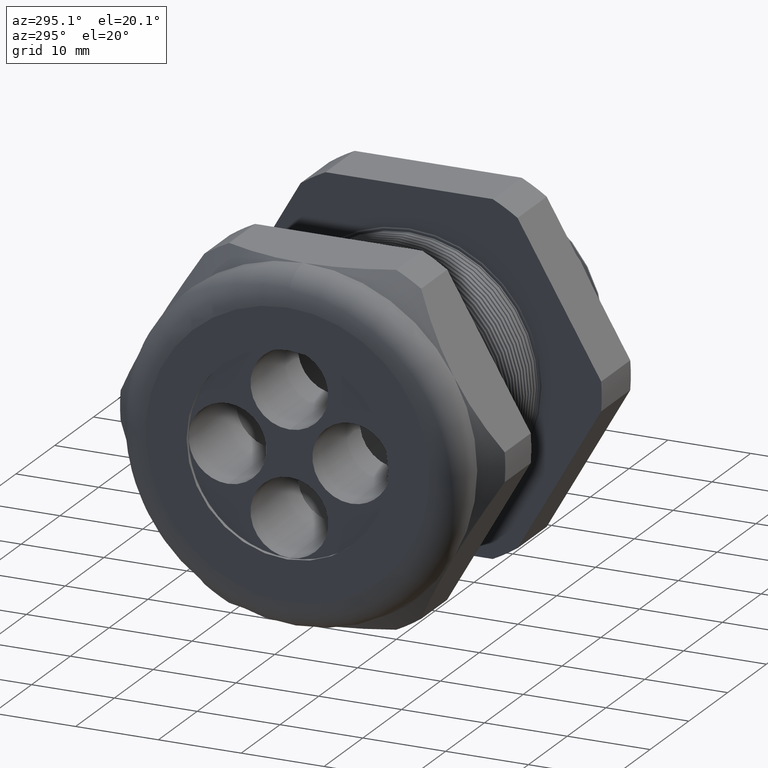
[diagram: clean part render]
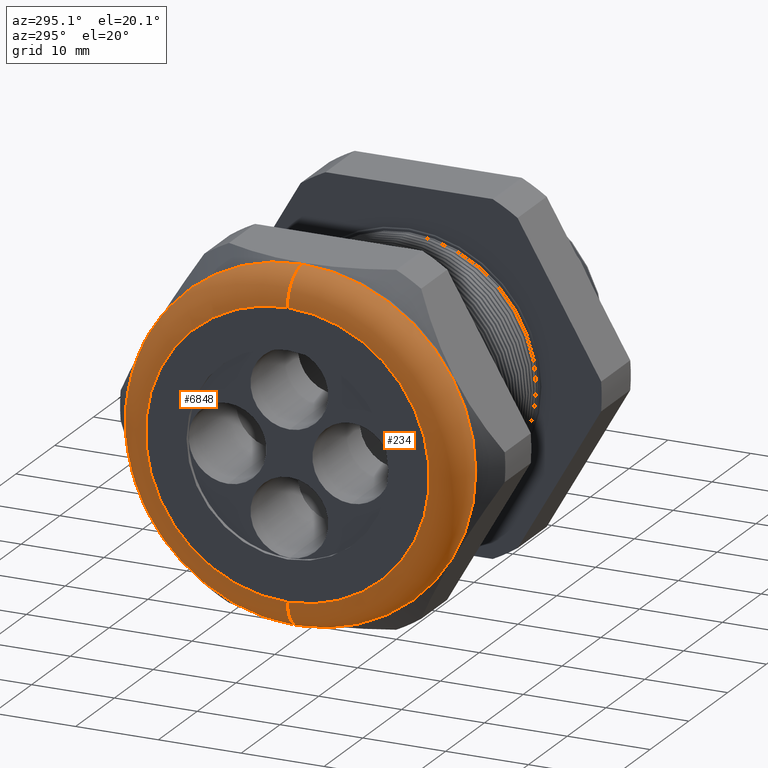
[diagram: same view with one multi-face feature highlighted, each face labeled with its STEP entity id]
A machine part, auxiliary view. The highlighted faces form ONE feature: a constant-radius fillet chain: 2 tangent blend faces with common blend radius 3.81 mm. The faces share edges in the B-rep.
Their STEP definitions:
[1] entity #6848 (Torus):
#111 = ORIENTED_EDGE ( 'NONE', *, *, #6888, .T. ) ;
#4904 = CARTESIAN_POINT ( 'NONE',  ( -1.689999999999999500, 1.010333609296566100E-016, 0.8249999999999998400 ) ) ;
#4905 = DIRECTION ( 'NONE',  ( 0.0000000000000000000, 0.0000000000000000000, 1.000000000000000000 ) ) ;
#4906 = DIRECTION ( 'NONE',  ( 1.000000000000000000, 0.0000000000000000000, 0.0000000000000000000 ) ) ;
#4907 = CARTESIAN_POINT ( 'NONE',  ( -1.689999999999999500, 0.0000000000000000000, 0.0000000000000000000 ) ) ;
#4908 = AXIS2_PLACEMENT_3D ( 'NONE', #4907, #4906, #4905 ) ;
#4909 = CIRCLE ( 'NONE', #4908, 0.8249999999999998400 ) ;
#4910 = CARTESIAN_POINT ( 'NONE',  ( -1.689999999999999500, 0.0000000000000000000, -0.8249999999999998400 ) ) ;
#4936 = DIRECTION ( 'NONE',  ( 0.0000000000000000000, 0.0000000000000000000, 1.000000000000000000 ) ) ;
#4937 = DIRECTION ( 'NONE',  ( -1.000000000000000000, 0.0000000000000000000, 0.0000000000000000000 ) ) ;
#4938 = CARTESIAN_POINT ( 'NONE',  ( -1.689999999999999500, 0.0000000000000000000, 0.0000000000000000000 ) ) ;
#4939 = AXIS2_PLACEMENT_3D ( 'NONE', #4938, #4937, #4936 ) ;
#4940 = TOROIDAL_SURFACE ( 'NONE', #4939, 0.6749999999999997100, 0.1499999999999999900 ) ;
#4941 = FACE_OUTER_BOUND ( 'NONE', #6827, .T. ) ;
#4996 = DIRECTION ( 'NONE',  ( 0.0000000000000000000, 0.0000000000000000000, -1.000000000000000000 ) ) ;
#4997 = DIRECTION ( 'NONE',  ( 0.0000000000000000000, -1.000000000000000000, 0.0000000000000000000 ) ) ;
#4998 = CARTESIAN_POINT ( 'NONE',  ( -1.689999999999999500, 0.0000000000000000000, 0.6749999999999997100 ) ) ;
#4999 = AXIS2_PLACEMENT_3D ( 'NONE', #4998, #4997, #4996 ) ;
#5000 = CIRCLE ( 'NONE', #4999, 0.1499999999999999700 ) ;
#5030 = DIRECTION ( 'NONE',  ( 0.0000000000000000000, 0.0000000000000000000, 1.000000000000000000 ) ) ;
#5031 = DIRECTION ( 'NONE',  ( -1.000000000000000000, 0.0000000000000000000, 0.0000000000000000000 ) ) ;
#5032 = CARTESIAN_POINT ( 'NONE',  ( -1.839999999999999400, 0.0000000000000000000, 0.0000000000000000000 ) ) ;
#5033 = AXIS2_PLACEMENT_3D ( 'NONE', #5032, #5031, #5030 ) ;
#5034 = CIRCLE ( 'NONE', #5033, 0.6749999999999997100 ) ;
#5036 = CARTESIAN_POINT ( 'NONE',  ( -1.839999999999999400, 0.0000000000000000000, 0.6749999999999997100 ) ) ;
#5042 = DIRECTION ( 'NONE',  ( 0.0000000000000000000, -1.224646799147353200E-016, 1.000000000000000000 ) ) ;
#5043 = DIRECTION ( 'NONE',  ( 0.0000000000000000000, 1.000000000000000000, 1.224646799147353200E-016 ) ) ;
#5044 = CARTESIAN_POINT ( 'NONE',  ( -1.689999999999999500, 8.266365894244631900E-017, -0.6749999999999997100 ) ) ;
#5045 = AXIS2_PLACEMENT_3D ( 'NONE', #5044, #5043, #5042 ) ;
#5046 = CIRCLE ( 'NONE', #5045, 0.1499999999999999700 ) ;
#5089 = CARTESIAN_POINT ( 'NONE',  ( -1.839999999999999400, 9.184850993605146000E-017, -0.6749999999999997100 ) ) ;
#6827 = EDGE_LOOP ( 'NONE', ( #6833, #111, #6882, #6885 ) ) ;
#6828 = VERTEX_POINT ( 'NONE', #4910 ) ;
#6831 = EDGE_CURVE ( 'NONE', #6828, #6834, #4909, .T. ) ;
#6833 = ORIENTED_EDGE ( 'NONE', *, *, #6831, .F. ) ;
#6834 = VERTEX_POINT ( 'NONE', #4904 ) ;
#6848 = ADVANCED_FACE ( 'NONE', ( #4941 ), #4940, .T. ) ;
#6882 = ORIENTED_EDGE ( 'NONE', *, *, #6891, .F. ) ;
#6883 = EDGE_CURVE ( 'NONE', #6834, #6890, #5000, .T. ) ;
#6885 = ORIENTED_EDGE ( 'NONE', *, *, #6883, .F. ) ;
#6888 = EDGE_CURVE ( 'NONE', #6828, #6894, #5046, .T. ) ;
#6890 = VERTEX_POINT ( 'NONE', #5036 ) ;
#6891 = EDGE_CURVE ( 'NONE', #6890, #6894, #5034, .T. ) ;
#6894 = VERTEX_POINT ( 'NONE', #5089 ) ;
[2] entity #234 (Torus):
#128 = EDGE_CURVE ( 'NONE', #6894, #6890, #1544, .T. ) ;
#187 = EDGE_CURVE ( 'NONE', #6834, #6828, #1647, .T. ) ;
#234 = ADVANCED_FACE ( 'NONE', ( #1716 ), #1715, .T. ) ;
#235 = EDGE_LOOP ( 'NONE', ( #236, #237, #238, #239 ) ) ;
#236 = ORIENTED_EDGE ( 'NONE', *, *, #6888, .F. ) ;
#237 = ORIENTED_EDGE ( 'NONE', *, *, #187, .F. ) ;
#238 = ORIENTED_EDGE ( 'NONE', *, *, #6883, .T. ) ;
#239 = ORIENTED_EDGE ( 'NONE', *, *, #128, .F. ) ;
#1544 = CIRCLE ( 'NONE', #1610, 0.6749999999999997100 ) ;
#1607 = DIRECTION ( 'NONE',  ( 0.0000000000000000000, 0.0000000000000000000, 1.000000000000000000 ) ) ;
#1608 = DIRECTION ( 'NONE',  ( -1.000000000000000000, 0.0000000000000000000, 0.0000000000000000000 ) ) ;
#1609 = CARTESIAN_POINT ( 'NONE',  ( -1.839999999999999400, 0.0000000000000000000, 0.0000000000000000000 ) ) ;
#1610 = AXIS2_PLACEMENT_3D ( 'NONE', #1609, #1608, #1607 ) ;
#1643 = DIRECTION ( 'NONE',  ( 0.0000000000000000000, 0.0000000000000000000, 1.000000000000000000 ) ) ;
#1644 = DIRECTION ( 'NONE',  ( 1.000000000000000000, 0.0000000000000000000, 0.0000000000000000000 ) ) ;
#1645 = CARTESIAN_POINT ( 'NONE',  ( -1.689999999999999500, 0.0000000000000000000, 0.0000000000000000000 ) ) ;
#1646 = AXIS2_PLACEMENT_3D ( 'NONE', #1645, #1644, #1643 ) ;
#1647 = CIRCLE ( 'NONE', #1646, 0.8249999999999998400 ) ;
#1712 = DIRECTION ( 'NONE',  ( 0.0000000000000000000, 0.0000000000000000000, 1.000000000000000000 ) ) ;
#1713 = DIRECTION ( 'NONE',  ( -1.000000000000000000, 0.0000000000000000000, 0.0000000000000000000 ) ) ;
#1714 = AXIS2_PLACEMENT_3D ( 'NONE', #1722, #1713, #1712 ) ;
#1715 = TOROIDAL_SURFACE ( 'NONE', #1714, 0.6749999999999997100, 0.1499999999999999900 ) ;
#1716 = FACE_OUTER_BOUND ( 'NONE', #235, .T. ) ;
#1722 = CARTESIAN_POINT ( 'NONE',  ( -1.689999999999999500, 0.0000000000000000000, 0.0000000000000000000 ) ) ;
#4904 = CARTESIAN_POINT ( 'NONE',  ( -1.689999999999999500, 1.010333609296566100E-016, 0.8249999999999998400 ) ) ;
#4910 = CARTESIAN_POINT ( 'NONE',  ( -1.689999999999999500, 0.0000000000000000000, -0.8249999999999998400 ) ) ;
#4996 = DIRECTION ( 'NONE',  ( 0.0000000000000000000, 0.0000000000000000000, -1.000000000000000000 ) ) ;
#4997 = DIRECTION ( 'NONE',  ( 0.0000000000000000000, -1.000000000000000000, 0.0000000000000000000 ) ) ;
#4998 = CARTESIAN_POINT ( 'NONE',  ( -1.689999999999999500, 0.0000000000000000000, 0.6749999999999997100 ) ) ;
#4999 = AXIS2_PLACEMENT_3D ( 'NONE', #4998, #4997, #4996 ) ;
#5000 = CIRCLE ( 'NONE', #4999, 0.1499999999999999700 ) ;
#5036 = CARTESIAN_POINT ( 'NONE',  ( -1.839999999999999400, 0.0000000000000000000, 0.6749999999999997100 ) ) ;
#5042 = DIRECTION ( 'NONE',  ( 0.0000000000000000000, -1.224646799147353200E-016, 1.000000000000000000 ) ) ;
#5043 = DIRECTION ( 'NONE',  ( 0.0000000000000000000, 1.000000000000000000, 1.224646799147353200E-016 ) ) ;
#5044 = CARTESIAN_POINT ( 'NONE',  ( -1.689999999999999500, 8.266365894244631900E-017, -0.6749999999999997100 ) ) ;
#5045 = AXIS2_PLACEMENT_3D ( 'NONE', #5044, #5043, #5042 ) ;
#5046 = CIRCLE ( 'NONE', #5045, 0.1499999999999999700 ) ;
#5089 = CARTESIAN_POINT ( 'NONE',  ( -1.839999999999999400, 9.184850993605146000E-017, -0.6749999999999997100 ) ) ;
#6828 = VERTEX_POINT ( 'NONE', #4910 ) ;
#6834 = VERTEX_POINT ( 'NONE', #4904 ) ;
#6883 = EDGE_CURVE ( 'NONE', #6834, #6890, #5000, .T. ) ;
#6888 = EDGE_CURVE ( 'NONE', #6828, #6894, #5046, .T. ) ;
#6890 = VERTEX_POINT ( 'NONE', #5036 ) ;
#6894 = VERTEX_POINT ( 'NONE', #5089 ) ;